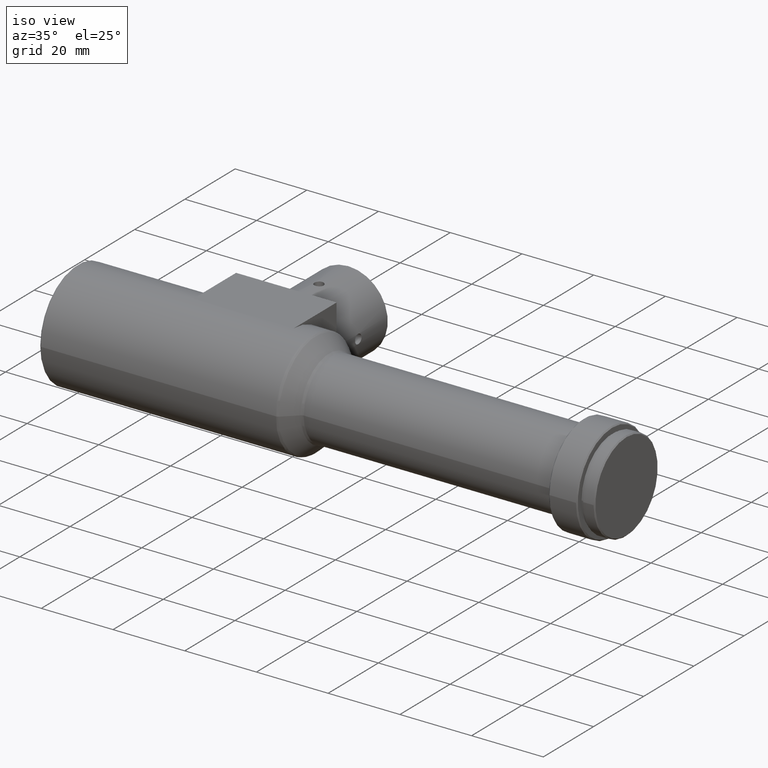
[diagram: clean part render]
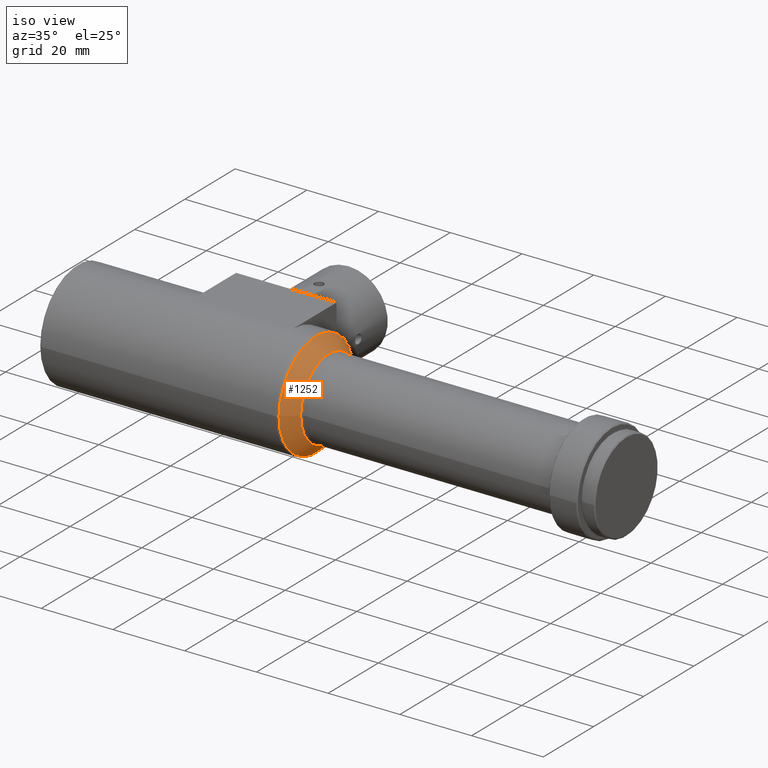
[diagram: same view with one face highlighted and labeled with its STEP entity id]
A machine part, iso view. The second image highlights one B-rep face of the part: STEP entity #1252.
In plain terms, the highlighted conical surface has half-angle 43.603 deg.
Its self-contained STEP definition (entity closure, byte-faithful):
#50 = AXIS2_PLACEMENT_3D ( 'NONE', #980, #303, #699 ) ;
#64 = VERTEX_POINT ( 'NONE', #909 ) ;
#175 = AXIS2_PLACEMENT_3D ( 'NONE', #249, #741, #633 ) ;
#197 = EDGE_CURVE ( 'NONE', #64, #64, #419, .T. ) ;
#246 = DIRECTION ( 'NONE',  ( 0.000000000000000000, -1.000000000000000000, 0.000000000000000000 ) ) ;
#249 = CARTESIAN_POINT ( 'NONE',  ( 66.58965517241379928, -7.806255641895631925E-15, 0.000000000000000000 ) ) ;
#257 = CONICAL_SURFACE ( 'NONE', #175, 14.72413793103448398, 0.7610127542247309140 ) ;
#303 = DIRECTION ( 'NONE',  ( -1.000000000000000000, -1.149412201554173596E-16, -0.000000000000000000 ) ) ;
#344 = FACE_BOUND ( 'NONE', #501, .T. ) ;
#419 = CIRCLE ( 'NONE', #690, 11.27586206896551246 ) ;
#488 = CIRCLE ( 'NONE', #50, 14.72413793103447865 ) ;
#501 = EDGE_LOOP ( 'NONE', ( #1095 ) ) ;
#529 = FACE_OUTER_BOUND ( 'NONE', #752, .T. ) ;
#624 = EDGE_CURVE ( 'NONE', #1032, #1032, #488, .T. ) ;
#633 = DIRECTION ( 'NONE',  ( 0.000000000000000000, 0.000000000000000000, 1.000000000000000000 ) ) ;
#690 = AXIS2_PLACEMENT_3D ( 'NONE', #833, #1108, #246 ) ;
#699 = DIRECTION ( 'NONE',  ( 0.000000000000000000, -1.000000000000000000, 0.000000000000000000 ) ) ;
#741 = DIRECTION ( 'NONE',  ( -1.000000000000000000, 0.000000000000000000, 0.000000000000000000 ) ) ;
#752 = EDGE_LOOP ( 'NONE', ( #961 ) ) ;
#833 = CARTESIAN_POINT ( 'NONE',  ( 70.21034482758621209, -7.414404779815902611E-15, 0.000000000000000000 ) ) ;
#909 = CARTESIAN_POINT ( 'NONE',  ( 70.21034482758621209, -11.27586206896551957, 0.000000000000000000 ) ) ;
#961 = ORIENTED_EDGE ( 'NONE', *, *, #624, .F. ) ;
#980 = CARTESIAN_POINT ( 'NONE',  ( 66.58965517241379928, -8.594347572880297771E-15, 0.000000000000000000 ) ) ;
#1032 = VERTEX_POINT ( 'NONE', #1132 ) ;
#1095 = ORIENTED_EDGE ( 'NONE', *, *, #197, .T. ) ;
#1108 = DIRECTION ( 'NONE',  ( -1.000000000000000000, -1.149412201554173596E-16, -0.000000000000000000 ) ) ;
#1132 = CARTESIAN_POINT ( 'NONE',  ( 66.58965517241379928, -14.72413793103448754, 0.000000000000000000 ) ) ;
#1252 = ADVANCED_FACE ( 'NONE', ( #529, #344 ), #257, .T. ) ;